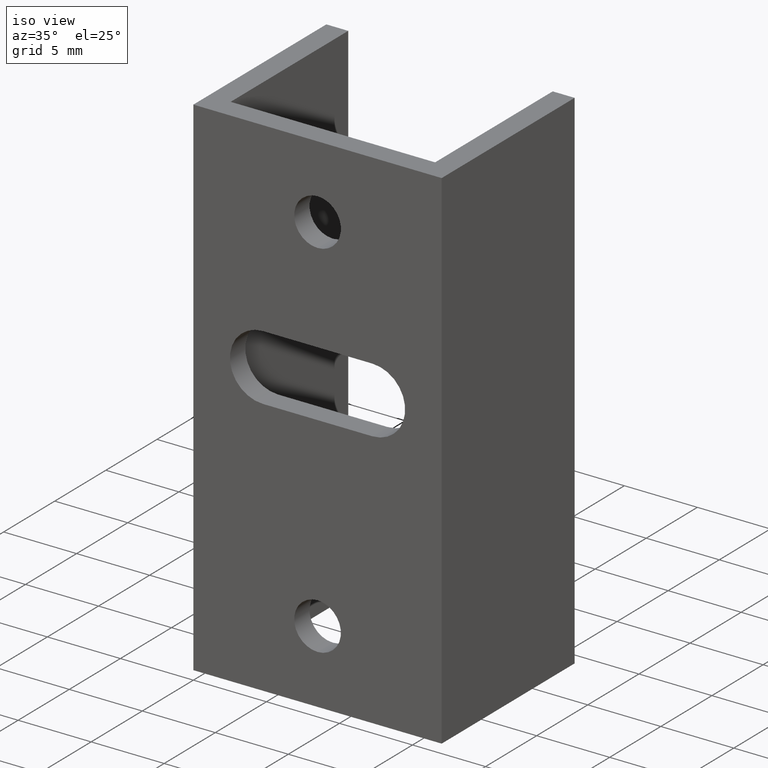
[diagram: clean part render]
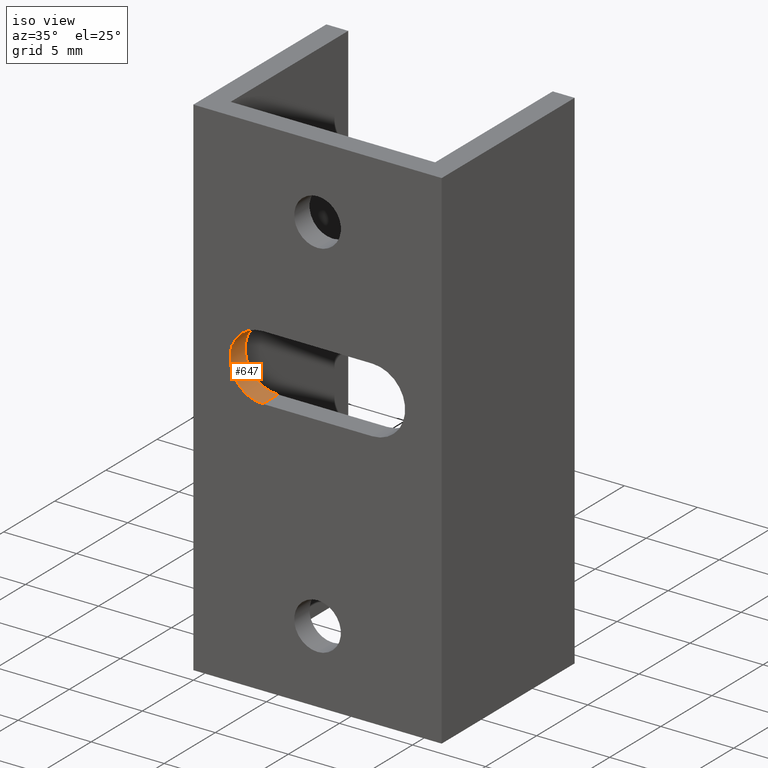
[diagram: same view with one face highlighted and labeled with its STEP entity id]
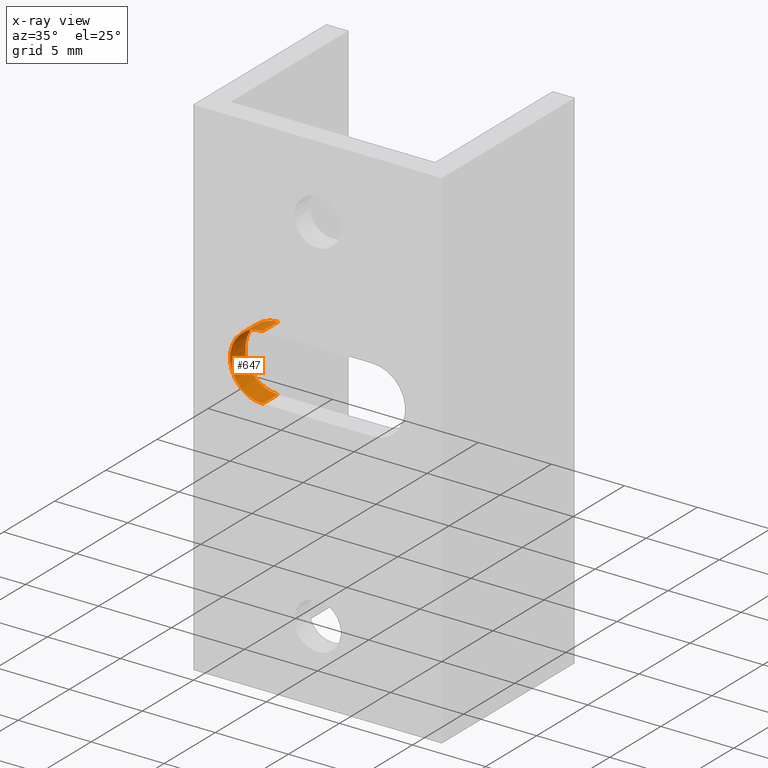
[diagram: x-ray of the same camera — body ghosted, the highlighted face saturated]
A machine part, iso view. The second image highlights one B-rep face of the part: STEP entity #647.
The next image is the same camera in x-ray: the body ghosted, the highlighted face saturated — about 0% of this face is hidden behind the body in this view.
In plain terms, the highlighted cylindrical surface (partial cylindrical patch) has radius 2.25 mm, axis along (-0, 1, -0).
Its self-contained STEP definition (entity closure, byte-faithful):
#35 = ORIENTED_EDGE ( 'NONE', *, *, #482, .T. ) ;
#46 = CARTESIAN_POINT ( 'NONE',  ( 4.750000000000012434, -6.288372600415925717E-15, -12.75000000000000178 ) ) ;
#57 = VERTEX_POINT ( 'NONE', #282 ) ;
#71 = DIRECTION ( 'NONE',  ( 0.0000000000000000000, 1.000000000000000000, 0.0000000000000000000 ) ) ;
#96 = EDGE_CURVE ( 'NONE', #57, #331, #171, .T. ) ;
#101 = DIRECTION ( 'NONE',  ( 0.0000000000000000000, 0.0000000000000000000, 1.000000000000000000 ) ) ;
#111 = CIRCLE ( 'NONE', #393, 2.250000000000000444 ) ;
#119 = CIRCLE ( 'NONE', #442, 2.250000000000000444 ) ;
#131 = VECTOR ( 'NONE', #376, 1000.000000000000000 ) ;
#132 = CARTESIAN_POINT ( 'NONE',  ( 4.750000000000013323, 1.499999999999993783, -15.00000000000000178 ) ) ;
#138 = DIRECTION ( 'NONE',  ( -0.0000000000000000000, 1.000000000000000000, -0.0000000000000000000 ) ) ;
#143 = ORIENTED_EDGE ( 'NONE', *, *, #220, .F. ) ;
#149 = VERTEX_POINT ( 'NONE', #549 ) ;
#164 = DIRECTION ( 'NONE',  ( 0.0000000000000000000, 1.000000000000000000, 0.0000000000000000000 ) ) ;
#171 = LINE ( 'NONE', #481, #131 ) ;
#210 = EDGE_LOOP ( 'NONE', ( #35, #143, #229, #624 ) ) ;
#220 = EDGE_CURVE ( 'NONE', #149, #572, #239, .T. ) ;
#229 = ORIENTED_EDGE ( 'NONE', *, *, #285, .F. ) ;
#239 = LINE ( 'NONE', #46, #279 ) ;
#279 = VECTOR ( 'NONE', #138, 1000.000000000000000 ) ;
#282 = CARTESIAN_POINT ( 'NONE',  ( 4.750000000000013323, -6.288372600415925717E-15, -17.25000000000000000 ) ) ;
#285 = EDGE_CURVE ( 'NONE', #57, #149, #111, .T. ) ;
#331 = VERTEX_POINT ( 'NONE', #417 ) ;
#343 = DIRECTION ( 'NONE',  ( 0.0000000000000000000, 0.0000000000000000000, 1.000000000000000000 ) ) ;
#370 = CARTESIAN_POINT ( 'NONE',  ( 4.750000000000013323, -6.288372600415925717E-15, -15.00000000000000178 ) ) ;
#376 = DIRECTION ( 'NONE',  ( -0.0000000000000000000, 1.000000000000000000, -0.0000000000000000000 ) ) ;
#393 = AXIS2_PLACEMENT_3D ( 'NONE', #370, #164, #101 ) ;
#417 = CARTESIAN_POINT ( 'NONE',  ( 4.750000000000013323, 1.499999999999993783, -17.25000000000000000 ) ) ;
#422 = DIRECTION ( 'NONE',  ( 0.0000000000000000000, 0.0000000000000000000, 1.000000000000000000 ) ) ;
#442 = AXIS2_PLACEMENT_3D ( 'NONE', #132, #71, #422 ) ;
#448 = DIRECTION ( 'NONE',  ( -0.0000000000000000000, 1.000000000000000000, -0.0000000000000000000 ) ) ;
#481 = CARTESIAN_POINT ( 'NONE',  ( 4.750000000000013323, -6.288372600415925717E-15, -17.25000000000000000 ) ) ;
#482 = EDGE_CURVE ( 'NONE', #331, #572, #119, .T. ) ;
#486 = FACE_OUTER_BOUND ( 'NONE', #210, .T. ) ;
#549 = CARTESIAN_POINT ( 'NONE',  ( 4.750000000000012434, -6.288372600415925717E-15, -12.75000000000000178 ) ) ;
#572 = VERTEX_POINT ( 'NONE', #585 ) ;
#582 = AXIS2_PLACEMENT_3D ( 'NONE', #603, #448, #343 ) ;
#585 = CARTESIAN_POINT ( 'NONE',  ( 4.750000000000013323, 1.499999999999993783, -12.75000000000000178 ) ) ;
#599 = CYLINDRICAL_SURFACE ( 'NONE', #582, 2.250000000000000444 ) ;
#603 = CARTESIAN_POINT ( 'NONE',  ( 4.750000000000013323, -6.288372600415925717E-15, -15.00000000000000178 ) ) ;
#624 = ORIENTED_EDGE ( 'NONE', *, *, #96, .T. ) ;
#647 = ADVANCED_FACE ( 'NONE', ( #486 ), #599, .F. ) ;